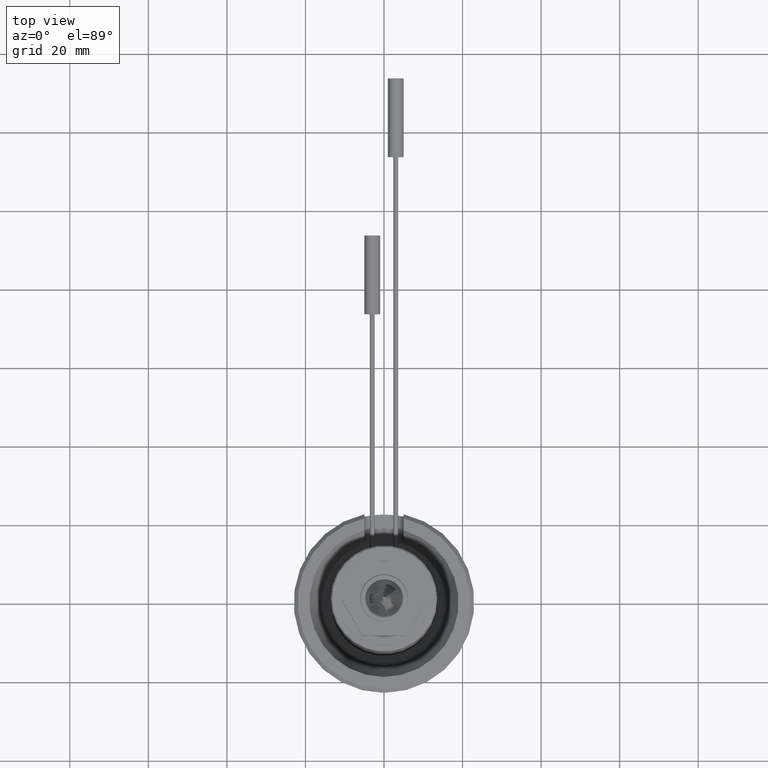
[diagram: clean part render]
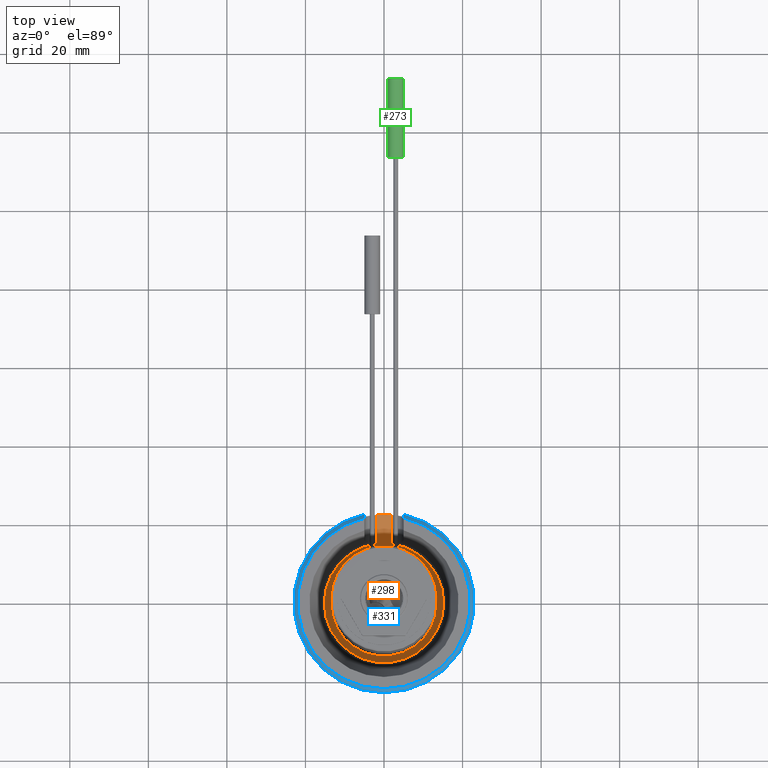
[diagram: same view with three faces highlighted in distinct colors, each labeled with its STEP entity id]
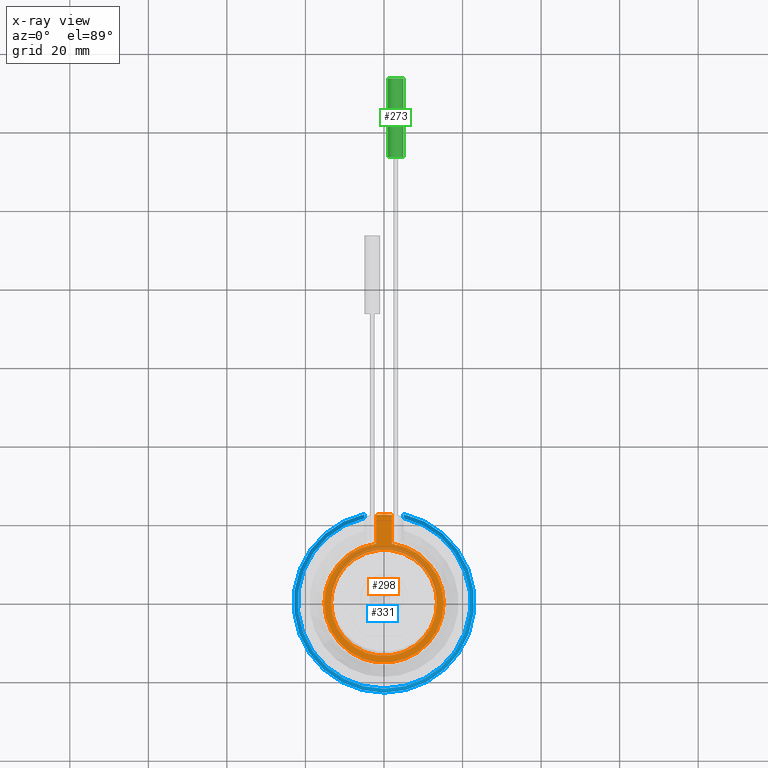
[diagram: x-ray of the same camera — body ghosted, the three highlighted faces saturated]
A machine part, top view with three faces highlighted in distinct colors.
The next image is the same camera in x-ray (body ghosted, the three faces saturated) — at least one of them is partly hidden behind the body in this view.
Their STEP definitions:

[orange] entity #298 — the highlighted planar face has unit normal (0, 0, 1).
#61=LINE('',#1903,#105);
#62=LINE('',#1904,#106);
#105=VECTOR('',#1432,1.);
#106=VECTOR('',#1433,1.);
#200=PLANE('',#1185);
#298=ADVANCED_FACE('',(#393,#394),#200,.T.);
#393=FACE_BOUND('',#473,.T.);
#394=FACE_BOUND('',#474,.T.);
#473=EDGE_LOOP('',(#642,#643,#644,#645));
#474=EDGE_LOOP('',(#646));
#642=ORIENTED_EDGE('',*,*,#949,.F.);
#643=ORIENTED_EDGE('',*,*,#979,.T.);
#644=ORIENTED_EDGE('',*,*,#959,.F.);
#645=ORIENTED_EDGE('',*,*,#980,.T.);
#646=ORIENTED_EDGE('',*,*,#981,.F.);
#845=VERTEX_POINT('',#1767);
#846=VERTEX_POINT('',#1769);
#853=VERTEX_POINT('',#1804);
#854=VERTEX_POINT('',#1805);
#871=VERTEX_POINT('',#1906);
#949=EDGE_CURVE('',#845,#846,#1053,.T.);
#959=EDGE_CURVE('',#853,#854,#1057,.T.);
#979=EDGE_CURVE('',#845,#854,#61,.T.);
#980=EDGE_CURVE('',#853,#846,#62,.T.);
#981=EDGE_CURVE('',#871,#871,#1069,.T.);
#1053=CIRCLE('',#1154,22.5);
#1057=CIRCLE('',#1161,15.199833762822);
#1069=CIRCLE('',#1184,13.5000000000001);
#1154=AXIS2_PLACEMENT_3D('',#1768,#1365,#1366);
#1161=AXIS2_PLACEMENT_3D('',#1803,#1384,#1385);
#1184=AXIS2_PLACEMENT_3D('',#1905,#1434,#1435);
#1185=AXIS2_PLACEMENT_3D('',#1907,#1436,#1437);
#1365=DIRECTION('',(0.,0.,-1.));
#1366=DIRECTION('',(1.,0.,0.));
#1384=DIRECTION('',(0.,0.,-1.));
#1385=DIRECTION('',(1.,0.,0.));
#1432=DIRECTION('',(0.,-1.,0.));
#1433=DIRECTION('',(0.,1.,0.));
#1434=DIRECTION('',(0.,0.,1.));
#1435=DIRECTION('',(1.,0.,0.));
#1436=DIRECTION('',(0.,0.,1.));
#1437=DIRECTION('',(1.,0.,0.));
#1767=CARTESIAN_POINT('',(-1.99999999999501,22.4109348310155,15.5));
#1768=CARTESIAN_POINT('',(0.,0.,15.5));
#1769=CARTESIAN_POINT('',(1.99999999999501,22.4109348310155,15.5));
#1803=CARTESIAN_POINT('',(0.,0.,15.5));
#1804=CARTESIAN_POINT('',(1.99999999999501,15.0676788662834,15.5));
#1805=CARTESIAN_POINT('',(-1.99999999999501,15.0676788662834,15.5));
#1903=CARTESIAN_POINT('',(-1.99999999999501,14.3539174589195,15.5));
#1904=CARTESIAN_POINT('',(1.99999999999501,21.9374109684815,15.5));
#1905=CARTESIAN_POINT('',(0.,0.,15.5));
#1906=CARTESIAN_POINT('',(13.5000000000001,0.,15.5));
#1907=CARTESIAN_POINT('',(13.5000000000001,0.,15.5));

[blue] entity #331 — the highlighted conical surface has half-angle 45 deg.
#129=CONICAL_SURFACE('',#1237,22.,45.);
#151=B_SPLINE_CURVE_WITH_KNOTS('',3,(#2004,#2005,#2006,#2007),
 .UNSPECIFIED.,.F.,.F.,(4,4),(0.,1.),.UNSPECIFIED.);
#152=B_SPLINE_CURVE_WITH_KNOTS('',3,(#2010,#2011,#2012,#2013),
 .UNSPECIFIED.,.F.,.F.,(4,4),(0.,1.),.UNSPECIFIED.);
#260=FACE_OUTER_BOUND('',#519,.T.);
#331=ADVANCED_FACE('',(#260),#129,.T.);
#519=EDGE_LOOP('',(#775,#776,#777,#778));
#775=ORIENTED_EDGE('',*,*,#1019,.F.);
#776=ORIENTED_EDGE('',*,*,#954,.F.);
#777=ORIENTED_EDGE('',*,*,#1021,.F.);
#778=ORIENTED_EDGE('',*,*,#969,.F.);
#849=VERTEX_POINT('',#1792);
#851=VERTEX_POINT('',#1795);
#861=VERTEX_POINT('',#1874);
#862=VERTEX_POINT('',#1876);
#954=EDGE_CURVE('',#849,#851,#1055,.T.);
#969=EDGE_CURVE('',#861,#862,#1060,.T.);
#1019=EDGE_CURVE('',#851,#861,#151,.T.);
#1021=EDGE_CURVE('',#862,#849,#152,.T.);
#1055=CIRCLE('',#1157,23.);
#1060=CIRCLE('',#1166,22.);
#1157=AXIS2_PLACEMENT_3D('',#1794,#1373,#1374);
#1166=AXIS2_PLACEMENT_3D('',#1875,#1395,#1396);
#1237=AXIS2_PLACEMENT_3D('',#2031,#1552,#1553);
#1373=DIRECTION('',(0.,0.,-1.));
#1374=DIRECTION('',(-1.,0.,0.));
#1395=DIRECTION('',(0.,0.,1.));
#1396=DIRECTION('',(-1.,0.,0.));
#1552=DIRECTION('',(0.,0.,-1.));
#1553=DIRECTION('',(-1.,0.,0.));
#1792=CARTESIAN_POINT('',(4.99999999999504,22.4499443206448,24.));
#1794=CARTESIAN_POINT('',(0.,0.,24.));
#1795=CARTESIAN_POINT('',(-4.99999999999498,22.4499443206448,24.));
#1874=CARTESIAN_POINT('',(-4.99999999999501,21.4242852856297,25.));
#1875=CARTESIAN_POINT('',(0.,0.,25.));
#1876=CARTESIAN_POINT('',(4.999999999995,21.4242852856297,25.));
#2004=CARTESIAN_POINT('',(-4.99999999999498,22.4499443206448,24.));
#2005=CARTESIAN_POINT('',(-4.99999999999498,22.1082461865377,24.3335262645727));
#2006=CARTESIAN_POINT('',(-4.99999999999501,21.7663685016499,24.6668687085708));
#2007=CARTESIAN_POINT('',(-4.99999999999501,21.4242852856297,25.));
#2010=CARTESIAN_POINT('',(4.999999999995,21.4242852856297,25.));
#2011=CARTESIAN_POINT('',(4.999999999995,21.7663685016499,24.6668687085708));
#2012=CARTESIAN_POINT('',(4.99999999999504,22.1082461865377,24.3335262645727));
#2013=CARTESIAN_POINT('',(4.99999999999504,22.4499443206448,24.));
#2031=CARTESIAN_POINT('',(0.,0.,25.));

[green] entity #273 — the highlighted cylindrical surface (bore or boss wall) has radius 2 mm, axis along (0, -1, 0).
#273=ADVANCED_FACE('',(#369,#370),#344,.T.);
#344=CYLINDRICAL_SURFACE('',#1121,2.);
#369=FACE_BOUND('',#435,.T.);
#370=FACE_BOUND('',#436,.T.);
#435=EDGE_LOOP('',(#542));
#436=EDGE_LOOP('',(#543));
#542=ORIENTED_EDGE('',*,*,#898,.F.);
#543=ORIENTED_EDGE('',*,*,#899,.T.);
#800=VERTEX_POINT('',#1595);
#801=VERTEX_POINT('',#1597);
#898=EDGE_CURVE('',#800,#800,#1029,.T.);
#899=EDGE_CURVE('',#801,#801,#1030,.T.);
#1029=CIRCLE('',#1119,2.);
#1030=CIRCLE('',#1120,2.);
#1119=AXIS2_PLACEMENT_3D('',#1594,#1272,#1273);
#1120=AXIS2_PLACEMENT_3D('',#1596,#1274,#1275);
#1121=AXIS2_PLACEMENT_3D('',#1598,#1276,#1277);
#1272=DIRECTION('',(0.,1.,0.));
#1273=DIRECTION('',(1.,0.,0.));
#1274=DIRECTION('',(0.,1.,0.));
#1275=DIRECTION('',(1.,0.,0.));
#1276=DIRECTION('',(0.,-1.,0.));
#1277=DIRECTION('',(0.,0.,-0.999999999999999));
#1594=CARTESIAN_POINT('',(3.,133.5,18.5));
#1595=CARTESIAN_POINT('',(5.,133.5,18.5));
#1596=CARTESIAN_POINT('',(3.,113.5,18.5));
#1597=CARTESIAN_POINT('',(5.,113.5,18.5));
#1598=CARTESIAN_POINT('',(3.,133.5,18.5));